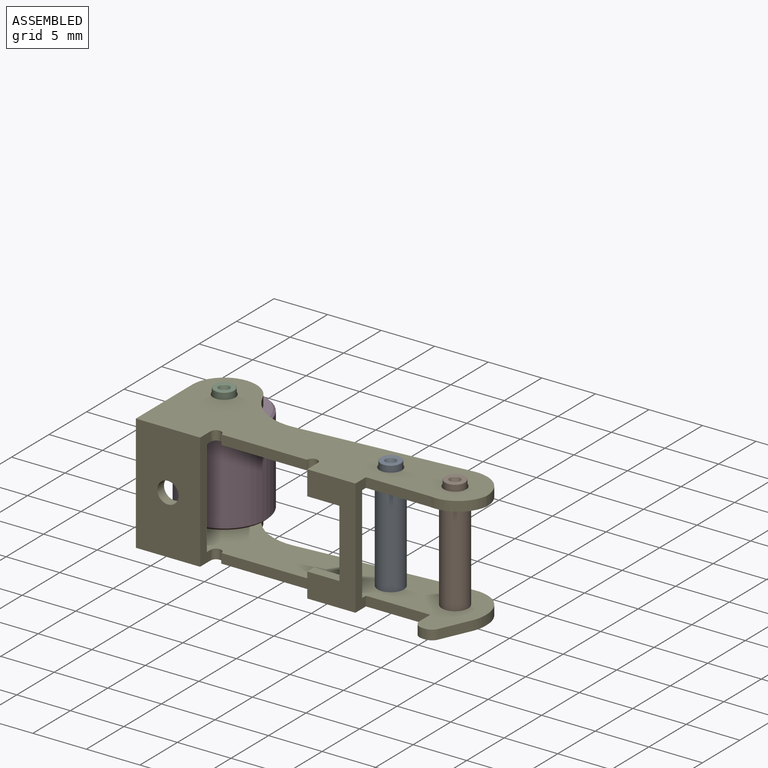
[diagram: assembled view]
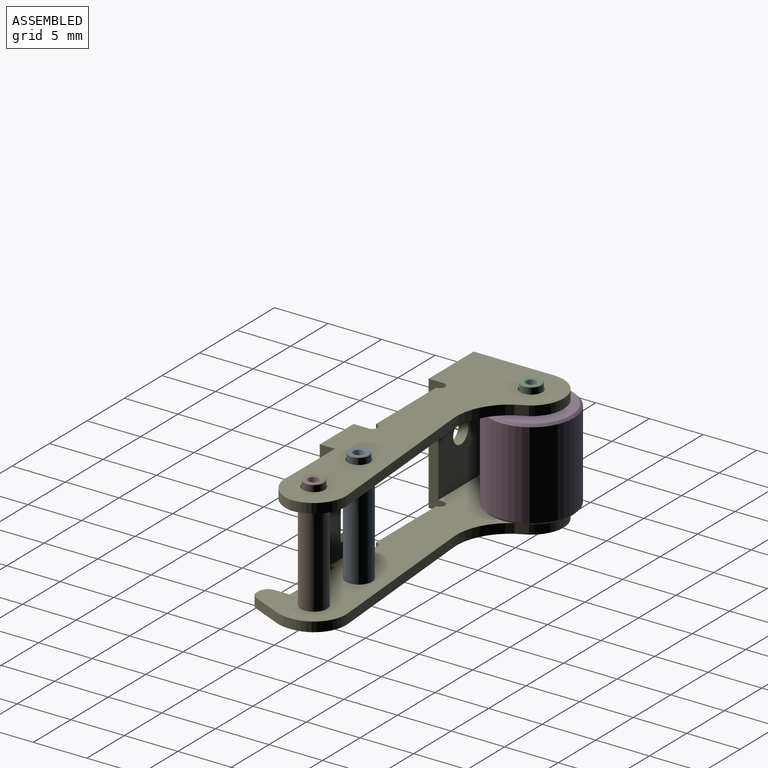
[diagram: assembled view, second angle]
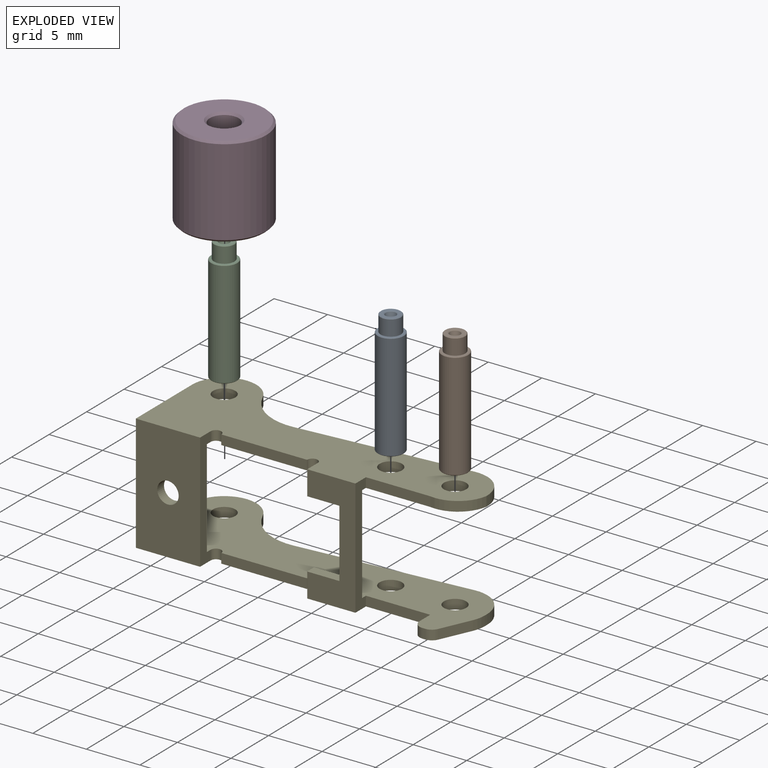
[diagram: exploded view]
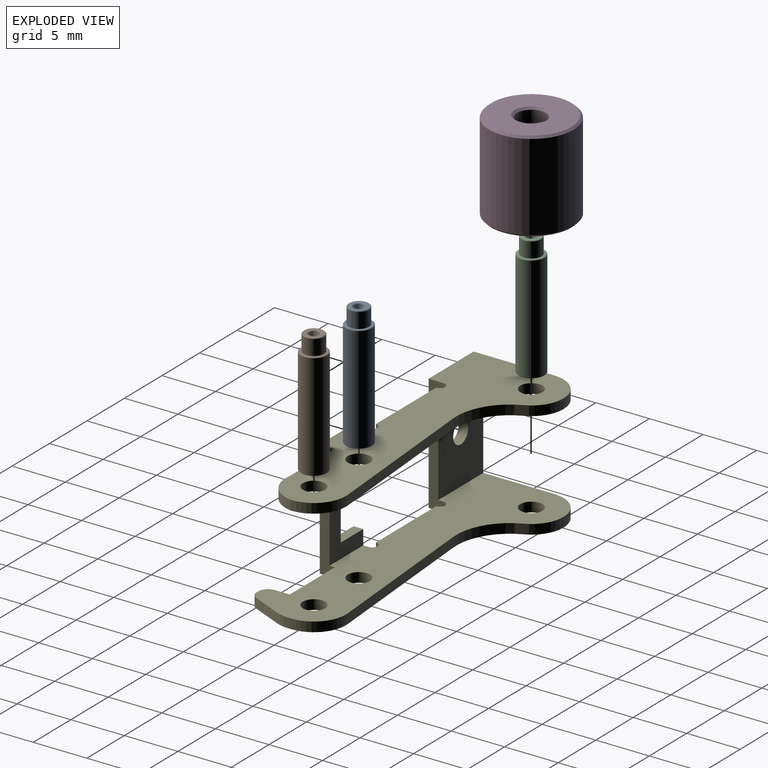
[diagram: exploded view, second angle]
ASSEMBLY  parts=5 mates=4
PART A: 11 faces, bbox 2.5x11.5x2.5 mm
  f0: plane 1.8x1.8mm, normal (0,1,0), area 1.6mm2, adj f1,f8
  f1: cone r=0mm half-angle=45deg, axis (0,-1,0), area 0.4mm2, adj f0,f2
  f2: cylinder r=0.95mm len=1.9mm, axis (0,1,0), area 8.7mm2, adj f1,f3
  f3: plane 2.35x2.35mm, normal (0,1,0), area 1.5mm2, adj f2,f4
  f4: cone r=0mm half-angle=45deg, axis (0,-1,0), area 0.5mm2, adj f3,f5
  f5: cylinder r=1.22mm len=9.9mm, axis (0,1,0), area 76.2mm2, adj f4,f6
  f6: cone r=0mm half-angle=45deg, axis (0,1,0), area 0.5mm2, adj f5,f7
  f7: plane 2.35x2.35mm, normal (0,-1,0), area 4.3mm2, adj f6
  f8: cone r=0mm half-angle=53.3deg, axis (0,1,0), area 0.3mm2, adj f0,f9
  f9: cone r=0mm half-angle=16.7deg, axis (0,1,0), area 2.1mm2, adj f8,f10
  f10: plane 0.4x0.4mm, normal (0,1,0), area 0.1mm2, adj f9
PART B: same geometry as A
PART C: same geometry as A
PART D: 8 faces, bbox 7.9x8.5x7.9 mm
  f0: plane 7.5x7.5mm, normal (0,1,0), area 36.6mm2, adj f1,f7
  f1: cone r=0mm half-angle=45deg, axis (0,1,0), area 2.6mm2, adj f0,f2
  f2: cylinder r=1.35mm len=8.1mm, axis (0,1,0), area 68.7mm2, adj f1,f3
  f3: cone r=0mm half-angle=45deg, axis (0,-1,0), area 2.6mm2, adj f2,f4
  f4: plane 7.5x7.5mm, normal (0,-1,0), area 36.6mm2, adj f3,f5
  f5: cone r=0mm half-angle=45deg, axis (0,1,0), area 6.8mm2, adj f4,f6
  f6: cylinder r=3.95mm len=8.1mm, axis (0,1,0), area 201mm2, adj f5,f7
  f7: cone r=0mm half-angle=45deg, axis (0,-1,0), area 6.8mm2, adj f0,f6
PART E: 48 faces, bbox 30x11.4x10.9 mm
  f0: plane 9.1x6mm, normal (0,1,0), area 51.5mm2, adj f2,f6,f12,f24,f47
  f1: plane 9.1x4.5mm, normal (0,1,0), area 21.9mm2, adj f6,f12,f21,f36,f37,f38,f39,f40
  f2: plane 10.9x1.4mm, normal (1,0,0), area 10.7mm2, adj f0,f3,f6,f9,f12,f22,f45,f46
  f3: plane 30x10.5mm, normal (0,0,1), area 171.2mm2, adj f2,f4,f7,f10,f20,f21,f22,f23
  f4: cylinder r=1.04mm len=2.08mm, axis (0,0,1), area 5.9mm2, adj f3,f6
  f5: cylinder r=1.04mm len=2.08mm, axis (0,0,1), area 5.9mm2, adj f9,f12
  f6: plane 30x9.6mm, normal (0,0,-1), area 161.8mm2, adj f0,f1,f2,f4,f7,f10,f20,f21
  f7: cylinder r=1.04mm len=2.08mm, axis (0,0,1), area 5.9mm2, adj f3,f6
  f8: cylinder r=1.04mm len=2.08mm, axis (0,0,1), area 5.9mm2, adj f9,f12
  f9: plane 30x11.4mm, normal (0,0,-1), area 177.2mm2, adj f2,f5,f8,f11,f13,f14,f15,f16
  f10: cylinder r=1.04mm len=2.08mm, axis (0,0,1), area 5.9mm2, adj f3,f6
  f11: cylinder r=1.04mm len=2.08mm, axis (0,0,1), area 5.9mm2, adj f9,f12
  f12: plane 30x11.4mm, normal (0,0,1), area 167.8mm2, adj f0,f1,f2,f5,f8,f11,f13,f14
  f13: cylinder r=3mm len=1.23mm, axis (0,0,-1), area 1.1mm2, adj f9,f12,f14,f34
  f14: plane 2.83x1.27mm, normal (0.91,-0.41,0), area 2.8mm2, adj f9,f12,f13,f15
  f15: cylinder r=0.9mm len=0.9mm, axis (0,0,1), area 0.9mm2, adj f9,f12,f14,f16
  f16: plane 0.9x0.24mm, normal (0,-1,0), area 0.2mm2, adj f9,f12,f15,f17
  f17: cylinder r=0.9mm len=0.9mm, axis (0,0,1), area 1.3mm2, adj f9,f12,f16,f18
  f18: plane 1.4x0.9mm, normal (-1,0,0), area 1.3mm2, adj f9,f12,f17,f19
  f19: plane 6x0.9mm, normal (0,-1,0), area 5.4mm2, adj f9,f12,f18,f21
  f20: plane 6x0.9mm, normal (0,-1,0), area 5.4mm2, adj f3,f6,f21,f35
  f21: plane 10.9x1.4mm, normal (1,0,0), area 10.7mm2, adj f1,f3,f6,f9,f12,f19,f20,f23
  f22: plane 10.9x6mm, normal (0,-1,0), area 62.3mm2, adj f2,f3,f9,f24,f47
  f23: plane 10.9x4.5mm, normal (0,-1,0), area 30mm2, adj f3,f9,f21,f36,f37,f38,f39,f40
  f24: plane 10.9x7.5mm, normal (-1,0,0), area 21.7mm2, adj f0,f3,f6,f9,f12,f22,f25,f26
  f25: cylinder r=3mm len=5.76mm, axis (0,0,1), area 7.4mm2, adj f3,f6,f24,f27
  f26: cylinder r=3mm len=5.76mm, axis (0,0,1), area 7.4mm2, adj f9,f12,f24,f28
  f27: cylinder r=5mm len=5.01mm, axis (0,0,1), area 5.6mm2, adj f3,f6,f25,f29
  f28: cylinder r=5mm len=5.01mm, axis (0,0,1), area 5.6mm2, adj f9,f12,f26,f30
  f29: plane 15.98x1.33mm, normal (-0.08,1,0), area 14.4mm2, adj f3,f6,f27,f31
  f30: plane 15.98x1.33mm, normal (-0.08,1,0), area 14.4mm2, adj f9,f12,f28,f32
  f31: cylinder r=3mm len=3.25mm, axis (0,0,1), area 4.5mm2, adj f3,f6,f29,f33
  f32: cylinder r=3mm len=3.25mm, axis (0,0,1), area 4.5mm2, adj f9,f12,f30,f34
  f33: plane 0.9x0.12mm, normal (1,0,0), area 0.1mm2, adj f3,f6,f31,f35
  f34: plane 0.9x0.31mm, normal (1,0,0), area 0.3mm2, adj f9,f12,f13,f32
  f35: cylinder r=3.05mm len=3.5mm, axis (0,0,-1), area 4.3mm2, adj f3,f6,f20,f33
  f36: plane 2.28x1.4mm, normal (-1,0,0), area 2.5mm2, adj f1,f3,f6,f23,f38,f41
  f37: plane 2.28x1.4mm, normal (-1,0,0), area 2.5mm2, adj f1,f9,f12,f23,f40,f42
  f38: plane 3x0.9mm, normal (0,0,-1), area 2.7mm2, adj f1,f23,f36,f39
  f39: plane 6.35x0.9mm, normal (-1,0,0), area 5.7mm2, adj f1,f23,f38,f40
  f40: plane 3x0.9mm, normal (0,0,1), area 2.7mm2, adj f1,f23,f37,f39
  f41: cylinder r=0.5mm len=1mm, axis (0,0,1), area 1.4mm2, adj f3,f6,f36,f43
  f42: cylinder r=0.5mm len=1mm, axis (0,0,1), area 1.4mm2, adj f9,f12,f37,f44
  f43: plane 8x0.9mm, normal (0,-1,0), area 7.2mm2, adj f3,f6,f41,f45
  f44: plane 8x0.9mm, normal (0,-1,0), area 7.2mm2, adj f9,f12,f42,f46
  f45: cylinder r=0.5mm len=1mm, axis (0,0,1), area 1.4mm2, adj f2,f3,f6,f43
  f46: cylinder r=0.5mm len=1mm, axis (0,0,1), area 1.4mm2, adj f2,f9,f12,f44
  f47: cylinder r=1mm len=2mm, axis (0,-1,0), area 5.7mm2, adj f0,f22
PLACE A rot(axis=(1,0,0),90deg) t=(-1.15,-4.91,6.07)mm
PLACE B rot(axis=(1,0,0),90deg) t=(4.85,-4.91,6.07)mm
PLACE C rot(axis=(1,0,0),90deg) t=(-19.15,-1.41,6.07)mm
PLACE D rot(axis=(1,0,0),90deg) t=(-19.15,-1.41,4.27)mm
PLACE E t=(-7.15,-8.46,0.02)mm fixed
MATE fastened B.f1 <-> E.f10  axis (0,0,-1) through (4.85,-4.91,-5.43)mm
MATE fastened A.f1 <-> E.f7  axis (0,0,-1) through (-1.15,-4.91,-5.43)mm
MATE fastened C.f1 <-> E.f4  axis (0,0,-1) through (-19.15,-1.41,-5.43)mm
MATE revolute D.f1 <-> E.f4  axis (0,0,1) through (-19.15,-1.41,4.27)mm
